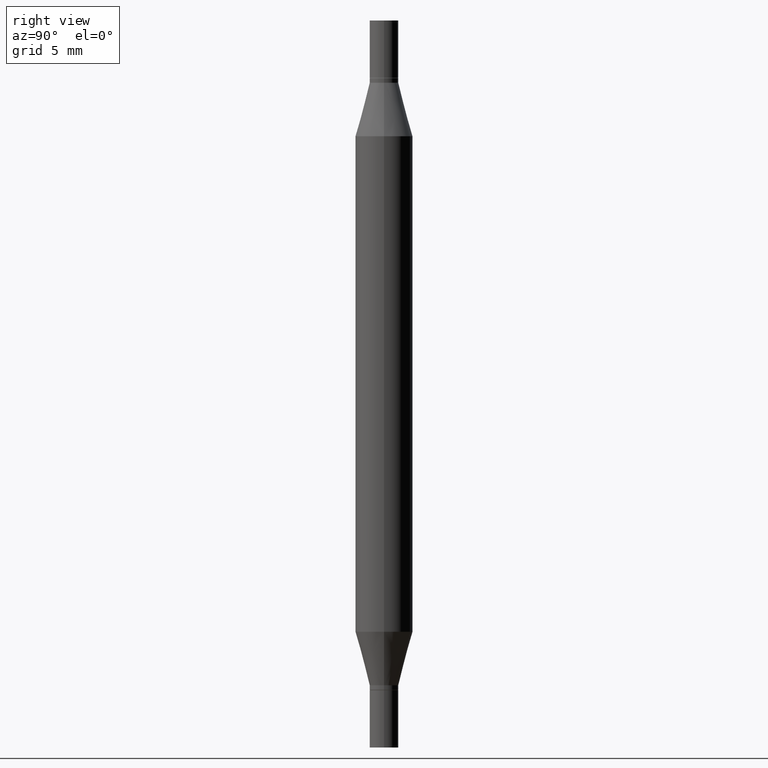
[diagram: clean part render]
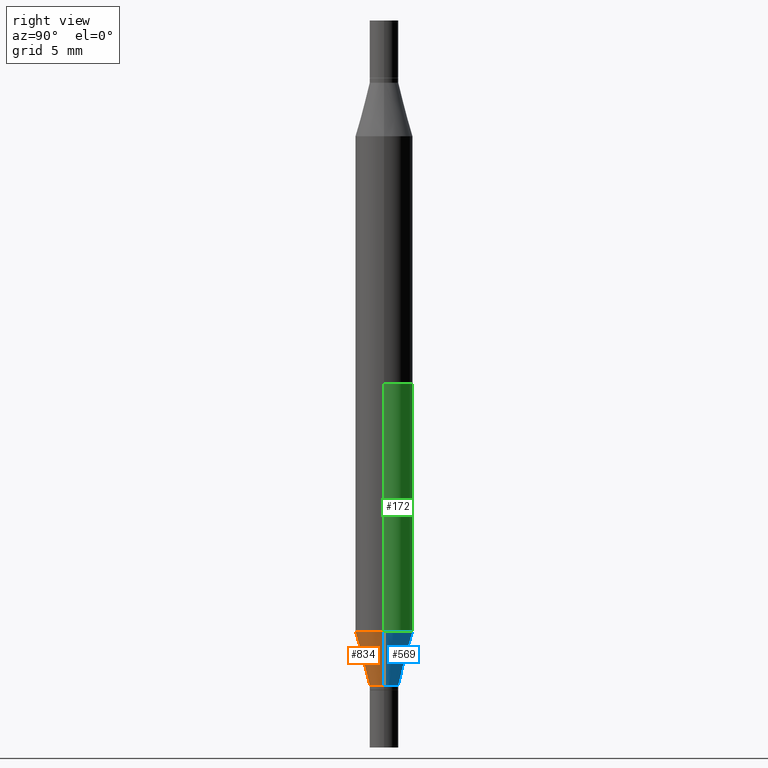
[diagram: same view with three faces highlighted in distinct colors, each labeled with its STEP entity id]
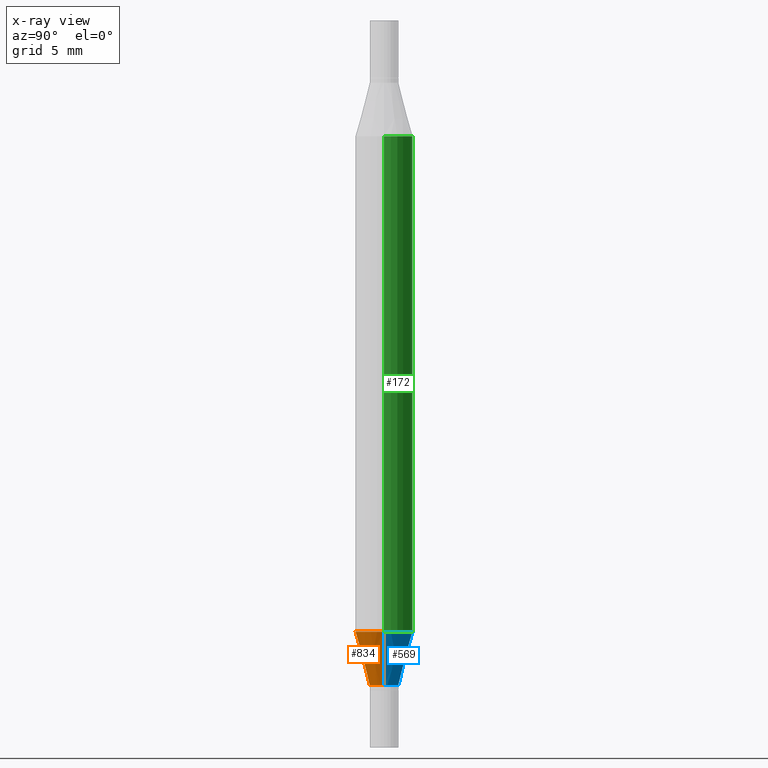
[diagram: x-ray of the same camera — body ghosted, the three highlighted faces saturated]
A machine part, right view with three faces highlighted in distinct colors.
The next image is the same camera in x-ray (body ghosted, the three faces saturated) — at least one of them is partly hidden behind the body in this view.
Their STEP definitions:

[orange] entity #834 — the highlighted conical surface has half-angle 15 deg.
#38 = CARTESIAN_POINT ( 'NONE',  ( 0.02954999999999991661, -4.983042166796936213E-15, -1.368099999999999872 ) ) ;
#71 = AXIS2_PLACEMENT_3D ( 'NONE', #856, #541, #696 ) ;
#74 = LINE ( 'NONE', #321, #941 ) ;
#119 = CARTESIAN_POINT ( 'NONE',  ( 0.05904999999999999832, -4.804643186156564878E-15, -1.258004501176717804 ) ) ;
#120 = ORIENTED_EDGE ( 'NONE', *, *, #660, .T. ) ;
#152 = DIRECTION ( 'NONE',  ( -2.445468806185136597E-29, 3.491481338843145583E-15, 1.000000000000000000 ) ) ;
#175 = VECTOR ( 'NONE', #285, 39.37007874015747433 ) ;
#191 = AXIS2_PLACEMENT_3D ( 'NONE', #826, #152, #976 ) ;
#285 = DIRECTION ( 'NONE',  ( 0.2588190451025213501, 1.565188264969621968E-15, 0.9659258262890682012 ) ) ;
#299 = EDGE_CURVE ( 'NONE', #980, #655, #74, .T. ) ;
#321 = CARTESIAN_POINT ( 'NONE',  ( -0.02954999999999991661, -4.566730241254198034E-15, -1.368099999999999872 ) ) ;
#382 = ORIENTED_EDGE ( 'NONE', *, *, #299, .F. ) ;
#394 = VERTEX_POINT ( 'NONE', #38 ) ;
#499 = CONICAL_SURFACE ( 'NONE', #71, 0.02954999999999991661, 0.2617993877991500740 ) ;
#509 = CARTESIAN_POINT ( 'NONE',  ( -0.05904999999999999832, -2.206690208753205272E-15, -1.258004501176717804 ) ) ;
#533 = ORIENTED_EDGE ( 'NONE', *, *, #970, .T. ) ;
#541 = DIRECTION ( 'NONE',  ( -2.445468806185136597E-29, 3.491481338843145583E-15, 1.000000000000000000 ) ) ;
#570 = DIRECTION ( 'NONE',  ( 1.000000000000000000, -6.982962677686281699E-15, 0.000000000000000000 ) ) ;
#580 = CARTESIAN_POINT ( 'NONE',  ( -0.02954999999999991661, -4.583140203546760956E-15, -1.368099999999999872 ) ) ;
#609 = EDGE_LOOP ( 'NONE', ( #382, #120, #533, #744 ) ) ;
#638 = CIRCLE ( 'NONE', #191, 0.05904999999999999832 ) ;
#645 = CARTESIAN_POINT ( 'NONE',  ( 0.02954999999999991661, -4.983042166796936213E-15, -1.368099999999999872 ) ) ;
#655 = VERTEX_POINT ( 'NONE', #509 ) ;
#660 = EDGE_CURVE ( 'NONE', #980, #394, #764, .T. ) ;
#696 = DIRECTION ( 'NONE',  ( 1.000000000000000000, -6.982962677686281699E-15, 0.000000000000000000 ) ) ;
#706 = EDGE_CURVE ( 'NONE', #655, #917, #638, .T. ) ;
#744 = ORIENTED_EDGE ( 'NONE', *, *, #706, .F. ) ;
#750 = DIRECTION ( 'NONE',  ( -0.2588190451025213501, 5.211531920934551042E-15, 0.9659258262890682012 ) ) ;
#764 = CIRCLE ( 'NONE', #927, 0.02954999999999991661 ) ;
#826 = CARTESIAN_POINT ( 'NONE',  ( 3.076410765668156654E-29, -4.392299240039190746E-15, -1.258004501176717804 ) ) ;
#834 = ADVANCED_FACE ( 'NONE', ( #919 ), #499, .T. ) ;
#856 = CARTESIAN_POINT ( 'NONE',  ( 3.345645873741884627E-29, -4.776695619671307391E-15, -1.368099999999999872 ) ) ;
#889 = CARTESIAN_POINT ( 'NONE',  ( 3.345645873741884627E-29, -4.776695619671307391E-15, -1.368099999999999872 ) ) ;
#917 = VERTEX_POINT ( 'NONE', #119 ) ;
#919 = FACE_OUTER_BOUND ( 'NONE', #609, .T. ) ;
#927 = AXIS2_PLACEMENT_3D ( 'NONE', #889, #949, #570 ) ;
#941 = VECTOR ( 'NONE', #750, 39.37007874015747433 ) ;
#949 = DIRECTION ( 'NONE',  ( -2.445468806185136597E-29, 3.491481338843145583E-15, 1.000000000000000000 ) ) ;
#960 = LINE ( 'NONE', #645, #175 ) ;
#970 = EDGE_CURVE ( 'NONE', #394, #917, #960, .T. ) ;
#976 = DIRECTION ( 'NONE',  ( 1.000000000000000000, -6.982962677686273021E-15, 0.000000000000000000 ) ) ;
#980 = VERTEX_POINT ( 'NONE', #580 ) ;

[blue] entity #569 — the highlighted conical surface has half-angle 15 deg.
#30 = DIRECTION ( 'NONE',  ( 1.000000000000000000, -6.982962677686281699E-15, 0.000000000000000000 ) ) ;
#38 = CARTESIAN_POINT ( 'NONE',  ( 0.02954999999999991661, -4.983042166796936213E-15, -1.368099999999999872 ) ) ;
#74 = LINE ( 'NONE', #321, #941 ) ;
#76 = ORIENTED_EDGE ( 'NONE', *, *, #100, .T. ) ;
#93 = CONICAL_SURFACE ( 'NONE', #527, 0.02954999999999991661, 0.2617993877991500740 ) ;
#100 = EDGE_CURVE ( 'NONE', #394, #980, #573, .T. ) ;
#119 = CARTESIAN_POINT ( 'NONE',  ( 0.05904999999999999832, -4.804643186156564878E-15, -1.258004501176717804 ) ) ;
#132 = DIRECTION ( 'NONE',  ( 1.000000000000000000, -6.982962677686273021E-15, 0.000000000000000000 ) ) ;
#142 = FACE_OUTER_BOUND ( 'NONE', #287, .T. ) ;
#175 = VECTOR ( 'NONE', #285, 39.37007874015747433 ) ;
#179 = EDGE_CURVE ( 'NONE', #917, #655, #666, .T. ) ;
#213 = CARTESIAN_POINT ( 'NONE',  ( 3.076410765668156654E-29, -4.392299240039190746E-15, -1.258004501176717804 ) ) ;
#285 = DIRECTION ( 'NONE',  ( 0.2588190451025213501, 1.565188264969621968E-15, 0.9659258262890682012 ) ) ;
#287 = EDGE_LOOP ( 'NONE', ( #76, #687, #832, #477 ) ) ;
#299 = EDGE_CURVE ( 'NONE', #980, #655, #74, .T. ) ;
#321 = CARTESIAN_POINT ( 'NONE',  ( -0.02954999999999991661, -4.566730241254198034E-15, -1.368099999999999872 ) ) ;
#348 = CARTESIAN_POINT ( 'NONE',  ( 3.345645873741884627E-29, -4.776695619671307391E-15, -1.368099999999999872 ) ) ;
#364 = DIRECTION ( 'NONE',  ( 1.000000000000000000, -6.982962677686281699E-15, 0.000000000000000000 ) ) ;
#394 = VERTEX_POINT ( 'NONE', #38 ) ;
#477 = ORIENTED_EDGE ( 'NONE', *, *, #970, .F. ) ;
#509 = CARTESIAN_POINT ( 'NONE',  ( -0.05904999999999999832, -2.206690208753205272E-15, -1.258004501176717804 ) ) ;
#527 = AXIS2_PLACEMENT_3D ( 'NONE', #722, #878, #364 ) ;
#544 = AXIS2_PLACEMENT_3D ( 'NONE', #213, #807, #132 ) ;
#569 = ADVANCED_FACE ( 'NONE', ( #142 ), #93, .T. ) ;
#573 = CIRCLE ( 'NONE', #728, 0.02954999999999991661 ) ;
#580 = CARTESIAN_POINT ( 'NONE',  ( -0.02954999999999991661, -4.583140203546760956E-15, -1.368099999999999872 ) ) ;
#645 = CARTESIAN_POINT ( 'NONE',  ( 0.02954999999999991661, -4.983042166796936213E-15, -1.368099999999999872 ) ) ;
#655 = VERTEX_POINT ( 'NONE', #509 ) ;
#666 = CIRCLE ( 'NONE', #544, 0.05904999999999999832 ) ;
#687 = ORIENTED_EDGE ( 'NONE', *, *, #299, .T. ) ;
#702 = DIRECTION ( 'NONE',  ( -2.445468806185136597E-29, 3.491481338843145583E-15, 1.000000000000000000 ) ) ;
#722 = CARTESIAN_POINT ( 'NONE',  ( 3.345645873741884627E-29, -4.776695619671307391E-15, -1.368099999999999872 ) ) ;
#728 = AXIS2_PLACEMENT_3D ( 'NONE', #348, #702, #30 ) ;
#750 = DIRECTION ( 'NONE',  ( -0.2588190451025213501, 5.211531920934551042E-15, 0.9659258262890682012 ) ) ;
#807 = DIRECTION ( 'NONE',  ( -2.445468806185136597E-29, 3.491481338843145583E-15, 1.000000000000000000 ) ) ;
#832 = ORIENTED_EDGE ( 'NONE', *, *, #179, .F. ) ;
#878 = DIRECTION ( 'NONE',  ( -2.445468806185136597E-29, 3.491481338843145583E-15, 1.000000000000000000 ) ) ;
#917 = VERTEX_POINT ( 'NONE', #119 ) ;
#941 = VECTOR ( 'NONE', #750, 39.37007874015747433 ) ;
#960 = LINE ( 'NONE', #645, #175 ) ;
#970 = EDGE_CURVE ( 'NONE', #394, #917, #960, .T. ) ;
#980 = VERTEX_POINT ( 'NONE', #580 ) ;

[green] entity #172 — the highlighted cylindrical surface (edge-blend (fillet) strip) has radius 1.4999 mm, axis along (-0, -0, -1).
#23 = LINE ( 'NONE', #841, #127 ) ;
#79 = VERTEX_POINT ( 'NONE', #773 ) ;
#119 = CARTESIAN_POINT ( 'NONE',  ( 0.05904999999999999832, -4.804643186156564878E-15, -1.258004501176717804 ) ) ;
#127 = VECTOR ( 'NONE', #352, 39.37007874015748143 ) ;
#132 = DIRECTION ( 'NONE',  ( 1.000000000000000000, -6.982962677686273021E-15, 0.000000000000000000 ) ) ;
#139 = CIRCLE ( 'NONE', #688, 0.05904999999999999832 ) ;
#147 = DIRECTION ( 'NONE',  ( 2.445468806185136597E-29, 3.491805094961124077E-15, 1.000000000000000000 ) ) ;
#160 = ORIENTED_EDGE ( 'NONE', *, *, #793, .F. ) ;
#164 = DIRECTION ( 'NONE',  ( -2.445468806185136877E-29, -3.491805094961123683E-15, -1.000000000000000000 ) ) ;
#172 = ADVANCED_FACE ( 'NONE', ( #588 ), #797, .T. ) ;
#179 = EDGE_CURVE ( 'NONE', #917, #655, #666, .T. ) ;
#213 = CARTESIAN_POINT ( 'NONE',  ( 3.076410765668156654E-29, -4.392299240039190746E-15, -1.258004501176717804 ) ) ;
#240 = CARTESIAN_POINT ( 'NONE',  ( -0.05905000000000000526, -4.818735010038875060E-15, -1.496099999999999985 ) ) ;
#247 = CARTESIAN_POINT ( 'NONE',  ( 3.076410765668156654E-29, -8.311408901143919011E-16, -0.2380954988232820146 ) ) ;
#352 = DIRECTION ( 'NONE',  ( -2.445468806185136877E-29, -3.491805094961123683E-15, -1.000000000000000000 ) ) ;
#466 = EDGE_LOOP ( 'NONE', ( #616, #160, #911, #596 ) ) ;
#509 = CARTESIAN_POINT ( 'NONE',  ( -0.05904999999999999832, -2.206690208753205272E-15, -1.258004501176717804 ) ) ;
#537 = DIRECTION ( 'NONE',  ( 1.000000000000000000, -6.982962677686265133E-15, 0.000000000000000000 ) ) ;
#544 = AXIS2_PLACEMENT_3D ( 'NONE', #213, #807, #132 ) ;
#574 = AXIS2_PLACEMENT_3D ( 'NONE', #975, #723, #885 ) ;
#588 = FACE_OUTER_BOUND ( 'NONE', #466, .T. ) ;
#596 = ORIENTED_EDGE ( 'NONE', *, *, #179, .T. ) ;
#607 = LINE ( 'NONE', #240, #790 ) ;
#616 = ORIENTED_EDGE ( 'NONE', *, *, #788, .F. ) ;
#655 = VERTEX_POINT ( 'NONE', #509 ) ;
#666 = CIRCLE ( 'NONE', #544, 0.05904999999999999832 ) ;
#688 = AXIS2_PLACEMENT_3D ( 'NONE', #247, #147, #537 ) ;
#711 = CARTESIAN_POINT ( 'NONE',  ( 0.05904999999999999832, -1.243484836231766624E-15, -0.2380954988232820146 ) ) ;
#723 = DIRECTION ( 'NONE',  ( -2.445468806185136597E-29, -3.491805094961124077E-15, -1.000000000000000000 ) ) ;
#773 = CARTESIAN_POINT ( 'NONE',  ( -0.05904999999999999832, -4.260284833459836245E-16, -0.2380954988232820146 ) ) ;
#788 = EDGE_CURVE ( 'NONE', #79, #655, #607, .T. ) ;
#790 = VECTOR ( 'NONE', #164, 39.37007874015748143 ) ;
#793 = EDGE_CURVE ( 'NONE', #882, #79, #139, .T. ) ;
#797 = CYLINDRICAL_SURFACE ( 'NONE', #574, 0.05905000000000000526 ) ;
#807 = DIRECTION ( 'NONE',  ( -2.445468806185136597E-29, 3.491481338843145583E-15, 1.000000000000000000 ) ) ;
#839 = EDGE_CURVE ( 'NONE', #882, #917, #23, .T. ) ;
#841 = CARTESIAN_POINT ( 'NONE',  ( 0.05905000000000000526, -5.636191362924657961E-15, -1.496099999999999985 ) ) ;
#882 = VERTEX_POINT ( 'NONE', #711 ) ;
#885 = DIRECTION ( 'NONE',  ( 1.000000000000000000, -6.982962677686272233E-15, 0.000000000000000000 ) ) ;
#911 = ORIENTED_EDGE ( 'NONE', *, *, #839, .T. ) ;
#917 = VERTEX_POINT ( 'NONE', #119 ) ;
#975 = CARTESIAN_POINT ( 'NONE',  ( 0.000000000000000000, -5.223847416807283040E-15, -1.496099999999999985 ) ) ;